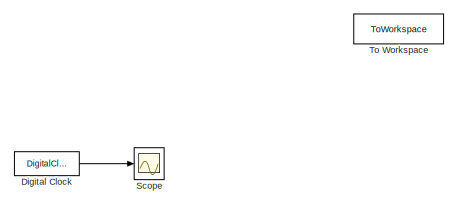
[diagram: root canvas - part 1/3, top left region]
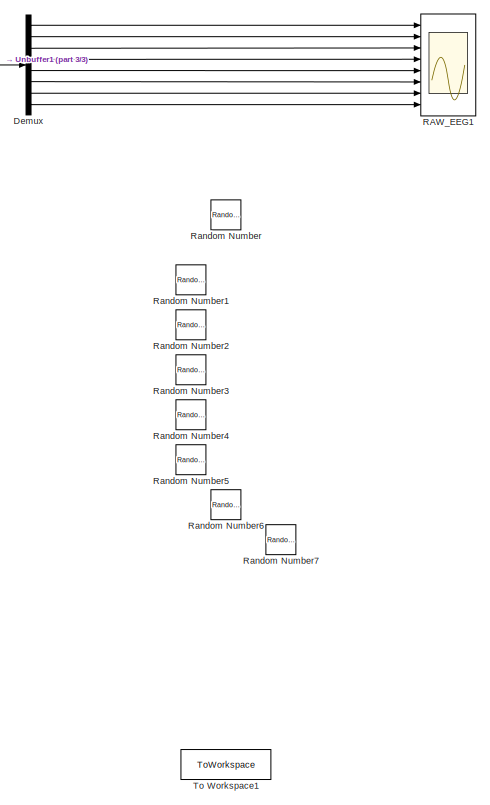
[diagram: root canvas - part 2/3, right side, full height]
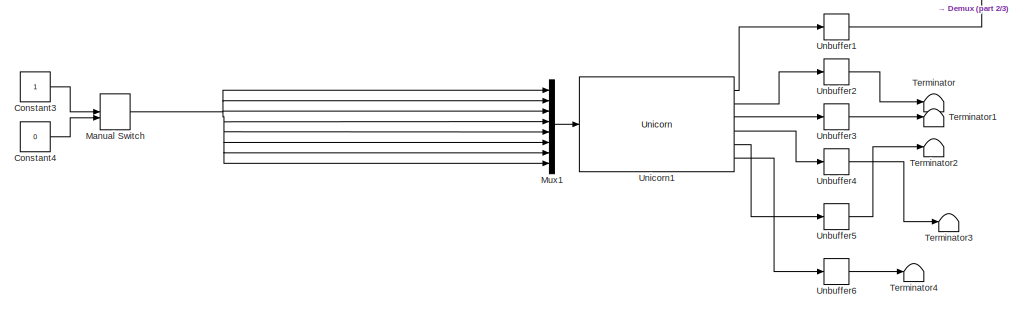
[diagram: root canvas - part 3/3, bottom center region]
MODEL slx_6ada67555e8b
KIND model
CONFIG AbsTol = auto
CONFIG EnableMultiTasking = off
CONFIG FixedStep = 0.004
CONFIG MaxStep = auto
CONFIG MinStep = auto
CONFIG RelTol = 1e-3
CONFIG SampleTimeConstraint = Unconstrained
CONFIG SolverName = FixedStepAuto
CONFIG StartTime = 0.0
CONFIG StopTime = 10
BLOCK [Constant] Constant3
  OutDataTypeStr = boolean
BLOCK [Constant] Constant4
  OutDataTypeStr = boolean
  Value = 0
BLOCK [Demux] Demux
  Outputs = 8
  Ports = [1, 8]
BLOCK [DigitalClock] Digital Clock
  SampleTime = 0.1
BLOCK [ManualSwitch] Manual Switch
BLOCK [Mux] Mux1
  DisplayOption = bar
  Inputs = 8
  Ports = [8, 1]
BLOCK [Scope] RAW_EEG1
  Floating = off
  NumInputPorts = 8
  Ports = [8]
  ScopeSpecificationString = Simulink.scopes.TimeScopeBlockCfg('CurrentConfiguration', extmgr.ConfigurationSet(extmgr.Configuration('Core','General UI',true),extmgr.Configuration('Core','Source UI',true),extmgr.Configuration('Sources','WiredSimulink',true,'DataLoggingMaxPoints','2500','DataLoggingSaveFormat','Structure','DataLoggingDecimation','1','DataLoggingDecimateData',true,'DataLogging',true),extmgr.Configuration('Visual...<+6448ch>
BLOCK [RandomNumber] Random Number
  Commented = on
  SampleTime = 0.004
BLOCK [RandomNumber] Random Number1
  Commented = on
  SampleTime = 0.004
BLOCK [RandomNumber] Random Number2
  Commented = on
  SampleTime = 0.004
BLOCK [RandomNumber] Random Number3
  Commented = on
  SampleTime = 0.004
BLOCK [RandomNumber] Random Number4
  Commented = on
  SampleTime = 0.004
BLOCK [RandomNumber] Random Number5
  Commented = on
  SampleTime = 0.004
BLOCK [RandomNumber] Random Number6
  Commented = on
  SampleTime = 0.004
BLOCK [RandomNumber] Random Number7
  Commented = on
  SampleTime = 0.004
BLOCK [Scope] Scope
  Floating = off
  NumInputPorts = 1
  Ports = [1]
  ScopeSpecificationString = Simulink.scopes.TimeScopeBlockCfg('CurrentConfiguration', extmgr.ConfigurationSet(extmgr.Configuration('Core','General UI',true),extmgr.Configuration('Core','Source UI',true),extmgr.Configuration('Sources','WiredSimulink',true,'DataLoggingVariableName','ScopeData1'),extmgr.Configuration('Visuals','Time Domain',true),extmgr.Configuration('Tools','Plot Navigation',true),extmgr.Configuration('Tools',...<+40ch>
BLOCK [Terminator] Terminator
BLOCK [Terminator] Terminator1
BLOCK [Terminator] Terminator2
BLOCK [Terminator] Terminator3
BLOCK [Terminator] Terminator4
BLOCK [ToWorkspace] To Workspace
  Commented = on
  FixptAsFi = on
  MaxDataPoints = inf
  Ports = [1]
  SampleTime = -1
  SaveFormat = Structure
  VariableName = operationTime
BLOCK [ToWorkspace] To Workspace1
  Commented = on
  FixptAsFi = on
  MaxDataPoints = inf
  Ports = [1]
  SampleTime = -1
  SaveFormat = Structure With Time
  VariableName = signalsOutput
BLOCK [Unbuffer] Unbuffer1
  Ports = [1, 1]
BLOCK [Unbuffer] Unbuffer2
  Ports = [1, 1]
BLOCK [Unbuffer] Unbuffer3
  Ports = [1, 1]
BLOCK [Unbuffer] Unbuffer4
  Ports = [1, 1]
BLOCK [Unbuffer] Unbuffer5
  Ports = [1, 1]
BLOCK [Unbuffer] Unbuffer6
  Ports = [1, 1]
BLOCK [Reference] Unicorn1  REF=UnicornLib/Unicorn
  Ports = [1, 6]
  SourceBlock = UnicornLib/Unicorn
  SourceProductName = Unicorn
  SourceType = Unicorn
LINE Constant3:1 -> Manual Switch:1
LINE Constant4:1 -> Manual Switch:2
LINE Demux:1 -> RAW_EEG1:1
LINE Demux:2 -> RAW_EEG1:2
LINE Demux:3 -> RAW_EEG1:3
LINE Demux:4 -> RAW_EEG1:4
LINE Demux:5 -> RAW_EEG1:5
LINE Demux:6 -> RAW_EEG1:6
LINE Demux:7 -> RAW_EEG1:7
LINE Demux:8 -> RAW_EEG1:8
LINE Digital Clock:1 -> Scope:1
NET Manual Switch:1 -> Mux1:1, Mux1:2, Mux1:3, Mux1:4, Mux1:5, Mux1:6, Mux1:7, Mux1:8
LINE Mux1:1 -> Unicorn1:1
LINE Unbuffer1:1 -> Demux:1
LINE Unbuffer2:1 -> Terminator:1
LINE Unbuffer3:1 -> Terminator1:1
LINE Unbuffer4:1 -> Terminator3:1
LINE Unbuffer5:1 -> Terminator2:1
LINE Unbuffer6:1 -> Terminator4:1
LINE Unicorn1:1 -> Unbuffer1:1
LINE Unicorn1:2 -> Unbuffer2:1
LINE Unicorn1:3 -> Unbuffer3:1
LINE Unicorn1:4 -> Unbuffer4:1
LINE Unicorn1:5 -> Unbuffer5:1
LINE Unicorn1:6 -> Unbuffer6:1
note: NET lines group one-source signal fan-out (src -> all destinations, sorted); 1:1 wires keep LINE
